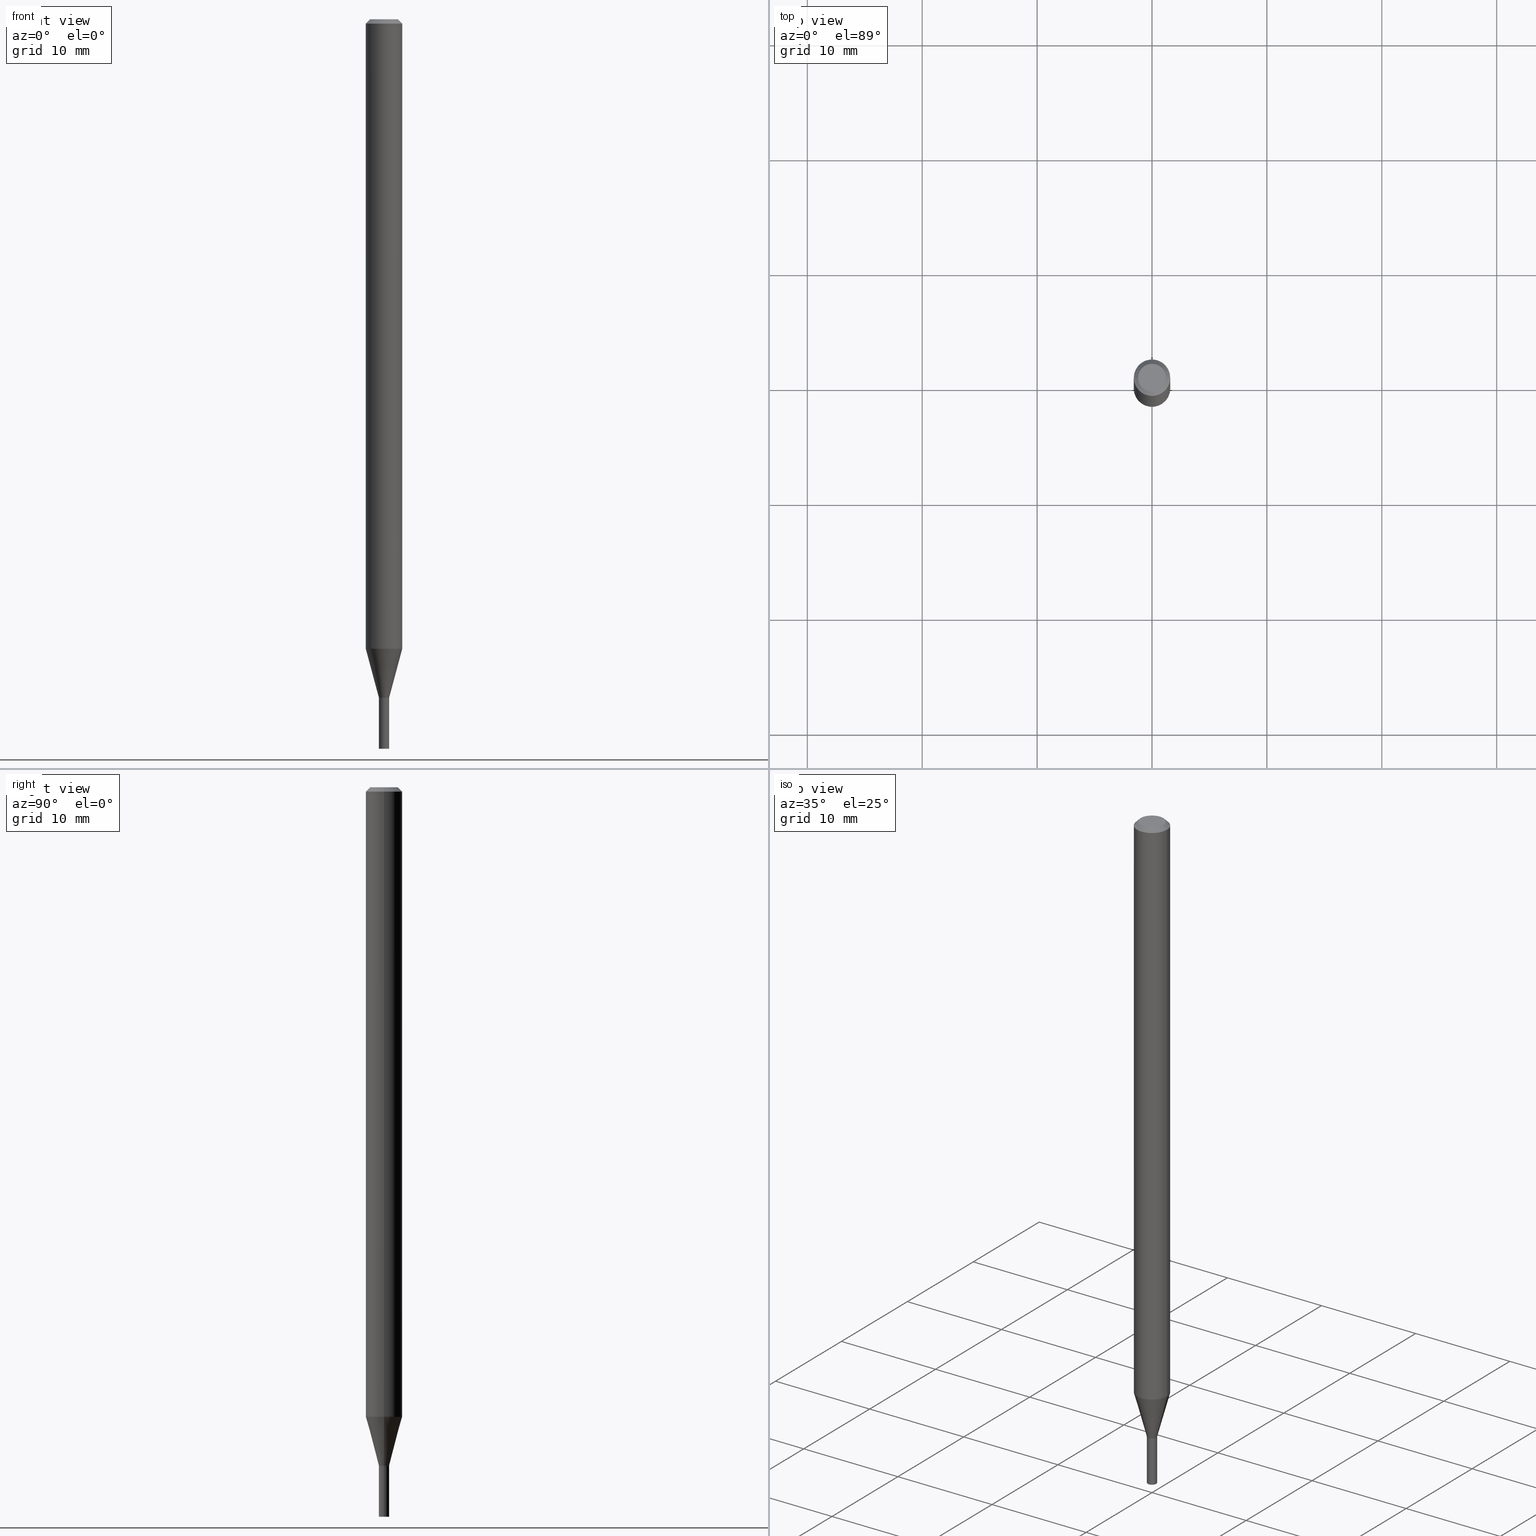
[diagram: canonical four-view strip — front | top / right | iso, engineering-drawing reading convention]
A machine part, canonical four-view strip (front | top / right | iso — engineering-drawing reading convention). The complete STEP part file that produces these views, byte-faithful:
ISO-10303-21;
HEADER;
FILE_DESCRIPTION (( 'STEP AP203' ),
    '1' );
FILE_NAME ('01233.STEP',
    '2024-03-20T00:20:50',
    ( '' ),
    ( '' ),
    'SwSTEP 2.0',
    'SolidWorks 2023',
    '' );
FILE_SCHEMA (( 'CONFIG_CONTROL_DESIGN' ));
ENDSEC;

DATA;
#1 = DIRECTION ( 'NONE',  ( -2.445468806185136597E-29, 3.491481338843145583E-15, 1.000000000000000000 ) ) ;
#2 = CARTESIAN_POINT ( 'NONE',  ( 0.06250000000000000000, -4.364351673553916694E-16, 3.047610484872459871E-30 ) ) ;
#3 = CIRCLE ( 'NONE', #449, 0.01749999999999965125 ) ;
#4 = FACE_OUTER_BOUND ( 'NONE', #57, .T. ) ;
#5 = DIRECTION ( 'NONE',  ( 1.000000000000000000, -6.982962677686262766E-15, 0.000000000000000000 ) ) ;
#6 = PLANE ( 'NONE',  #85 ) ;
#7 = FACE_OUTER_BOUND ( 'NONE', #314, .T. ) ;
#8 = AXIS2_PLACEMENT_3D ( 'NONE', #118, #295, #360 ) ;
#9 = AXIS2_PLACEMENT_3D ( 'NONE', #406, #78, #179 ) ;
#10 = CONICAL_SURFACE ( 'NONE', #352, 0.01700000000000000122, 0.7853981633974718157 ) ;
#11 = DIRECTION ( 'NONE',  ( 1.000000000000000000, -6.982962677686274599E-15, 0.000000000000000000 ) ) ;
#12 = DIRECTION ( 'NONE',  ( -2.445468806185136877E-29, 3.491481338843145188E-15, 1.000000000000000000 ) ) ;
#13 = APPROVAL_DATE_TIME ( #378, #204 ) ;
#14 = CC_DESIGN_PERSON_AND_ORGANIZATION_ASSIGNMENT ( #119, #266, ( #164 ) ) ;
#15 = VECTOR ( 'NONE', #26, 39.37007874015748143 ) ;
#16 = CC_DESIGN_APPROVAL ( #392, ( #164 ) ) ;
#17 = ADVANCED_FACE ( 'NONE', ( #458 ), #344, .T. ) ;
#18 = DIRECTION ( 'NONE',  ( -2.445468806185136597E-29, 3.491481338843145583E-15, 1.000000000000000000 ) ) ;
#19 = PERSON_AND_ORGANIZATION ( #210, #114 ) ;
#20 = EDGE_LOOP ( 'NONE', ( #177, #285, #289, #464 ) ) ;
#21 =( NAMED_UNIT ( * ) SI_UNIT ( $, .STERADIAN. ) SOLID_ANGLE_UNIT ( ) );
#22 = EDGE_CURVE ( 'NONE', #38, #242, #72, .T. ) ;
#23 = CARTESIAN_POINT ( 'NONE',  ( 5.685714974380441691E-29, -8.117694112810313450E-15, -2.324999999999999734 ) ) ;
#24 = ORIENTED_EDGE ( 'NONE', *, *, #389, .T. ) ;
#25 = LENGTH_MEASURE_WITH_UNIT ( LENGTH_MEASURE( 0.02539999999999999897 ), #380 );
#26 = DIRECTION ( 'NONE',  ( -2.445468806185136877E-29, 3.491481338843145188E-15, 1.000000000000000000 ) ) ;
#27 = ORIENTED_EDGE ( 'NONE', *, *, #186, .T. ) ;
#28 = CARTESIAN_POINT ( 'NONE',  ( 5.685714974380443933E-29, -8.117694112810315028E-15, -2.325000000000000622 ) ) ;
#29 = VERTEX_POINT ( 'NONE', #169 ) ;
#30 = ADVANCED_FACE ( 'NONE', ( #358 ), #182, .T. ) ;
#31 = CARTESIAN_POINT ( 'NONE',  ( -0.01750000000000000167, 1.243449787580175444E-16, -8.608136407946085539E-31 ) ) ;
#32 = LOCAL_TIME ( 20, 20, 50.00000000000000000, #50 ) ;
#33 = EDGE_LOOP ( 'NONE', ( #257, #24, #91, #395 ) ) ;
#34 = ORIENTED_EDGE ( 'NONE', *, *, #291, .F. ) ;
#35 = DIRECTION ( 'NONE',  ( 1.000000000000000000, -6.982962677686267499E-15, 5.108144071313017768E-29 ) ) ;
#36 = DIRECTION ( 'NONE',  ( -1.000000000000000000, 6.982962677686266711E-15, 0.000000000000000000 ) ) ;
#37 = EDGE_LOOP ( 'NONE', ( #98, #402 ) ) ;
#38 = VERTEX_POINT ( 'NONE', #311 ) ;
#39 = DIRECTION ( 'NONE',  ( 2.445468806185136597E-29, -3.491481338843145583E-15, -1.000000000000000000 ) ) ;
#40 = AXIS2_PLACEMENT_3D ( 'NONE', #423, #247, #218 ) ;
#41 = CARTESIAN_POINT ( 'NONE',  ( 5.275017351895093327E-29, -7.531326754049456374E-15, -2.157057713659400022 ) ) ;
#42 = AXIS2_PLACEMENT_3D ( 'NONE', #41, #111, #5 ) ;
#43 = PRODUCT_RELATED_PRODUCT_CATEGORY ( 'detail', '', ( #243 ) ) ;
#44 = CARTESIAN_POINT ( 'NONE',  ( 0.000000000000000000, 0.000000000000000000, 0.000000000000000000 ) ) ;
#45 = PLANE ( 'NONE',  #437 ) ;
#46 = DIRECTION ( 'NONE',  ( -2.445468806185136597E-29, 3.491481338843145583E-15, 1.000000000000000000 ) ) ;
#47 = CARTESIAN_POINT ( 'NONE',  ( 0.01750000000000000167, -8.239895959669823433E-15, -2.325000000000000178 ) ) ;
#48 = DIRECTION ( 'NONE',  ( -2.445468806185136597E-29, 3.491481338843145583E-15, 1.000000000000000000 ) ) ;
#49 = CARTESIAN_POINT ( 'NONE',  ( 0.01700000000000000122, -8.236404478330978848E-15, -2.324999999999999734 ) ) ;
#50 = COORDINATED_UNIVERSAL_TIME_OFFSET ( 5, 0, .BEHIND. ) ;
#51 = DATE_TIME_ROLE ( 'classification_date' ) ;
#52 = CIRCLE ( 'NONE', #460, 0.01749999999999964778 ) ;
#53 = LOCAL_TIME ( 20, 20, 50.00000000000000000, #456 ) ;
#54 = DIRECTION ( 'NONE',  ( 1.000000000000000000, -6.982962677686267499E-15, 5.108144071313017768E-29 ) ) ;
#55 = FACE_OUTER_BOUND ( 'NONE', #68, .T. ) ;
#56 = LINE ( 'NONE', #165, #278 ) ;
#57 = EDGE_LOOP ( 'NONE', ( #107, #248, #273, #167 ) ) ;
#58 = EDGE_CURVE ( 'NONE', #276, #252, #350, .T. ) ;
#59 = CARTESIAN_POINT ( 'NONE',  ( 3.668203209277705088E-31, -5.237222008264718399E-17, -0.01499999999999999944 ) ) ;
#60 = ORIENTED_EDGE ( 'NONE', *, *, #262, .T. ) ;
#61 = PERSON_AND_ORGANIZATION ( #210, #114 ) ;
#62 = CC_DESIGN_APPROVAL ( #267, ( #309 ) ) ;
#63 = ORIENTED_EDGE ( 'NONE', *, *, #88, .T. ) ;
#64 = ADVANCED_FACE ( 'NONE', ( #137 ), #82, .T. ) ;
#65 = ORIENTED_EDGE ( 'NONE', *, *, #372, .T. ) ;
#66 = CC_DESIGN_DATE_AND_TIME_ASSIGNMENT ( #376, #51, ( #343 ) ) ;
#67 = AXIS2_PLACEMENT_3D ( 'NONE', #371, #48, #11 ) ;
#68 = EDGE_LOOP ( 'NONE', ( #178, #63, #101, #139 ) ) ;
#69 = CARTESIAN_POINT ( 'NONE',  ( 5.684492239977351131E-29, -8.115948372140892735E-15, -2.324500000000000455 ) ) ;
#70 = CARTESIAN_POINT ( 'NONE',  ( -0.01700000000000000122, -7.994252620556986688E-15, -2.324999999999999734 ) ) ;
#71 = ORIENTED_EDGE ( 'NONE', *, *, #328, .T. ) ;
#72 = LINE ( 'NONE', #100, #15 ) ;
#73 = DIRECTION ( 'NONE',  ( -2.445468806185136597E-29, 3.491481338843145583E-15, 1.000000000000000000 ) ) ;
#74 = ORIENTED_EDGE ( 'NONE', *, *, #367, .F. ) ;
#75 = EDGE_CURVE ( 'NONE', #138, #396, #77, .T. ) ;
#76 = APPLICATION_CONTEXT ( 'configuration controlled 3d designs of mechanical parts and assemblies' ) ;
#77 = CIRCLE ( 'NONE', #92, 0.06250000000000000000 ) ;
#78 = DIRECTION ( 'NONE',  ( -2.445468806185136597E-29, 3.491481338843145583E-15, 1.000000000000000000 ) ) ;
#79 = CARTESIAN_POINT ( 'NONE',  ( -0.06250000000000000000, 3.840629472727444916E-16, -0.01499999999999999944 ) ) ;
#80 = DIRECTION ( 'NONE',  ( 0.2588190451025211281, 1.565188264969622954E-15, 0.9659258262890679791 ) ) ;
#81 = EDGE_CURVE ( 'NONE', #286, #208, #361, .T. ) ;
#82 = CONICAL_SURFACE ( 'NONE', #305, 0.01700000000000000122, 0.7853981633974718157 ) ;
#83 = CALENDAR_DATE ( 2024, 19, 3 ) ;
#84 = AXIS2_PLACEMENT_3D ( 'NONE', #44, #405, #112 ) ;
#85 = AXIS2_PLACEMENT_3D ( 'NONE', #229, #151, #117 ) ;
#86 = DIRECTION ( 'NONE',  ( -2.445468806185136597E-29, 3.491481338843145583E-15, 1.000000000000000000 ) ) ;
#87 = SECURITY_CLASSIFICATION_LEVEL ( 'unclassified' ) ;
#88 = EDGE_CURVE ( 'NONE', #127, #242, #56, .T. ) ;
#89 = DIRECTION ( 'NONE',  ( -2.445468806185136597E-29, 3.491481338843145583E-15, 1.000000000000000000 ) ) ;
#90 = CARTESIAN_POINT ( 'NONE',  ( 5.685714974380442812E-29, -8.117694112810313450E-15, -2.325000000000000178 ) ) ;
#91 = ORIENTED_EDGE ( 'NONE', *, *, #246, .T. ) ;
#92 = AXIS2_PLACEMENT_3D ( 'NONE', #417, #412, #377 ) ;
#93 = FACE_OUTER_BOUND ( 'NONE', #315, .T. ) ;
#94 = DIRECTION ( 'NONE',  ( 0.000000000000000000, 0.000000000000000000, 1.000000000000000000 ) ) ;
#95 = AXIS2_PLACEMENT_3D ( 'NONE', #168, #94, #126 ) ;
#96 = ORIENTED_EDGE ( 'NONE', *, *, #88, .F. ) ;
#97 = ADVANCED_FACE ( 'NONE', ( #348 ), #103, .T. ) ;
#98 = ORIENTED_EDGE ( 'NONE', *, *, #345, .F. ) ;
#99 = CALENDAR_DATE ( 2024, 19, 3 ) ;
#100 = CARTESIAN_POINT ( 'NONE',  ( -0.01749999999999965125, 1.243449787580150545E-16, -8.608136407945913879E-31 ) ) ;
#101 = ORIENTED_EDGE ( 'NONE', *, *, #408, .F. ) ;
#102 = EDGE_LOOP ( 'NONE', ( #216, #244 ) ) ;
#103 = CYLINDRICAL_SURFACE ( 'NONE', #40, 0.06250000000000000000 ) ;
#104 = EDGE_LOOP ( 'NONE', ( #96, #433, #27, #171 ) ) ;
#105 = AXIS2_PLACEMENT_3D ( 'NONE', #183, #330, #237 ) ;
#106 = ADVANCED_FACE ( 'NONE', ( #318 ), #321, .F. ) ;
#107 = ORIENTED_EDGE ( 'NONE', *, *, #439, .F. ) ;
#108 = CARTESIAN_POINT ( 'NONE',  ( 5.685714974380443933E-29, -8.117694112810315028E-15, -2.325000000000000622 ) ) ;
#109 = ADVANCED_BREP_SHAPE_REPRESENTATION ( '01233', ( #120, #274, #95 ), #374 ) ;
#110 = DIRECTION ( 'NONE',  ( -1.000000000000000000, 6.982962677686265922E-15, -4.876176775795935793E-29 ) ) ;
#111 = DIRECTION ( 'NONE',  ( -2.445468806185136597E-29, 3.491481338843145583E-15, 1.000000000000000000 ) ) ;
#112 = DIRECTION ( 'NONE',  ( 1.000000000000000000, -6.982962677686266711E-15, 4.876176775795935793E-29 ) ) ;
#113 = DIRECTION ( 'NONE',  ( -2.445468806185136597E-29, 3.491481338843145583E-15, 1.000000000000000000 ) ) ;
#114 = ORGANIZATION ( 'UNSPECIFIED', 'UNSPECIFIED', '' ) ;
#115 = ADVANCED_FACE ( 'NONE', ( #93 ), #142, .T. ) ;
#116 = LINE ( 'NONE', #49, #435 ) ;
#117 = DIRECTION ( 'NONE',  ( 1.000000000000000000, -6.982962677686265922E-15, 4.876176775795935793E-29 ) ) ;
#118 = CARTESIAN_POINT ( 'NONE',  ( 1.222018468595665098E-16, 0.01749999999999188316, -2.325000000000000178 ) ) ;
#119 = PERSON_AND_ORGANIZATION ( #210, #114 ) ;
#120 = MANIFOLD_SOLID_BREP ( 'Body-Move/Copy2[1]', #426 ) ;
#121 = AXIS2_PLACEMENT_3D ( 'NONE', #90, #239, #385 ) ;
#122 = CIRCLE ( 'NONE', #455, 0.01750000000000000167 ) ;
#123 = AXIS2_PLACEMENT_3D ( 'NONE', #283, #434, #401 ) ;
#124 = CIRCLE ( 'NONE', #214, 0.01700000000000000122 ) ;
#125 = ORIENTED_EDGE ( 'NONE', *, *, #162, .T. ) ;
#126 = DIRECTION ( 'NONE',  ( 1.000000000000000000, 0.000000000000000000, 0.000000000000000000 ) ) ;
#127 = VERTEX_POINT ( 'NONE', #70 ) ;
#128 = APPLICATION_PROTOCOL_DEFINITION ( 'international standard', 'config_control_design', 1994, #76 ) ;
#129 = ADVANCED_FACE ( 'NONE', ( #251 ), #327, .T. ) ;
#130 = ORIENTED_EDGE ( 'NONE', *, *, #75, .F. ) ;
#131 = DIRECTION ( 'NONE',  ( 1.000000000000000000, -6.982962677686265922E-15, 4.876176775795935793E-29 ) ) ;
#132 = CARTESIAN_POINT ( 'NONE',  ( 5.685714974380443933E-29, -8.117694112810315028E-15, -2.325000000000000622 ) ) ;
#133 = APPROVAL_PERSON_ORGANIZATION ( #241, #267, #163 ) ;
#134 = VERTEX_POINT ( 'NONE', #181 ) ;
#135 = ORIENTED_EDGE ( 'NONE', *, *, #379, .T. ) ;
#136 = DIMENSIONAL_EXPONENTS ( 1.000000000000000000, 0.000000000000000000, 0.000000000000000000, 0.000000000000000000, 0.000000000000000000, 0.000000000000000000, 0.000000000000000000 ) ;
#137 = FACE_OUTER_BOUND ( 'NONE', #104, .T. ) ;
#138 = VERTEX_POINT ( 'NONE', #205 ) ;
#139 = ORIENTED_EDGE ( 'NONE', *, *, #186, .F. ) ;
#140 = CARTESIAN_POINT ( 'NONE',  ( -0.06250000000000000000, 4.440892098500626162E-16, -3.074334431409316114E-30 ) ) ;
#141 = DIRECTION ( 'NONE',  ( -2.445468806185136597E-29, 3.491481338843145583E-15, 1.000000000000000000 ) ) ;
#142 = CONICAL_SURFACE ( 'NONE', #337, 0.01749999999999964778, 0.2617993877991498519 ) ;
#143 = ORIENTED_EDGE ( 'NONE', *, *, #313, .T. ) ;
#144 = LOCAL_TIME ( 20, 20, 50.00000000000000000, #264 ) ;
#145 = DIRECTION ( 'NONE',  ( -2.445468806185136877E-29, 3.491481338843145188E-15, 1.000000000000000000 ) ) ;
#146 = DIRECTION ( 'NONE',  ( 0.7071067811865642261, -2.468850131082431399E-15, 0.7071067811865309194 ) ) ;
#147 = EDGE_CURVE ( 'NONE', #134, #38, #52, .T. ) ;
#148 = CARTESIAN_POINT ( 'NONE',  ( 0.01749999999999964778, -8.239895959669821855E-15, -2.325000000000000622 ) ) ;
#149 = CARTESIAN_POINT ( 'NONE',  ( 0.01749999999999965125, -1.222018468595072220E-16, 8.533309357642717380E-31 ) ) ;
#150 = EDGE_CURVE ( 'NONE', #390, #252, #260, .T. ) ;
#151 = DIRECTION ( 'NONE',  ( -2.438088387897960049E-29, 3.491481338843145188E-15, 1.000000000000000000 ) ) ;
#152 = CARTESIAN_POINT ( 'NONE',  ( 5.684492239977351131E-29, -8.115948372140892735E-15, -2.324500000000000455 ) ) ;
#153 = CIRCLE ( 'NONE', #416, 0.01749999999999965125 ) ;
#154 = CONICAL_SURFACE ( 'NONE', #420, 0.06250000000000000000, 0.7853981633974109755 ) ;
#155 = CARTESIAN_POINT ( 'NONE',  ( -2.746572805822384744E-44, 3.921378049496544864E-30, 1.123127311571380021E-15 ) ) ;
#156 = CC_DESIGN_PERSON_AND_ORGANIZATION_ASSIGNMENT ( #307, #310, ( #243 ) ) ;
#157 = VECTOR ( 'NONE', #145, 39.37007874015748143 ) ;
#158 = FACE_OUTER_BOUND ( 'NONE', #353, .T. ) ;
#159 = SHAPE_DEFINITION_REPRESENTATION ( #199, #109 ) ;
#160 = LOCAL_TIME ( 20, 20, 50.00000000000000000, #172 ) ;
#161 = APPROVAL_STATUS ( 'not_yet_approved' ) ;
#162 = EDGE_CURVE ( 'NONE', #29, #354, #387, .T. ) ;
#163 = APPROVAL_ROLE ( '' ) ;
#164 = PRODUCT_DEFINITION_FORMATION_WITH_SPECIFIED_SOURCE ( 'ANY', '', #243, .NOT_KNOWN. ) ;
#165 = CARTESIAN_POINT ( 'NONE',  ( -0.01700000000000000122, -7.996901847731095522E-15, -2.324999999999999734 ) ) ;
#166 = APPLICATION_PROTOCOL_DEFINITION ( 'international standard', 'config_control_design', 1994, #275 ) ;
#167 = ORIENTED_EDGE ( 'NONE', *, *, #195, .F. ) ;
#168 = CARTESIAN_POINT ( 'NONE',  ( 0.000000000000000000, 0.000000000000000000, 0.000000000000000000 ) ) ;
#169 = CARTESIAN_POINT ( 'NONE',  ( 0.06250000000000000000, -4.888073874380388472E-16, -0.01499999999999999944 ) ) ;
#170 = DIRECTION ( 'NONE',  ( -2.438088387897960049E-29, 3.491481338843145188E-15, 1.000000000000000000 ) ) ;
#171 = ORIENTED_EDGE ( 'NONE', *, *, #224, .F. ) ;
#172 = COORDINATED_UNIVERSAL_TIME_OFFSET ( 5, 0, .BEHIND. ) ;
#173 = EDGE_LOOP ( 'NONE', ( #175, #240, #341, #323 ) ) ;
#174 = AXIS2_PLACEMENT_3D ( 'NONE', #326, #1, #391 ) ;
#175 = ORIENTED_EDGE ( 'NONE', *, *, #340, .F. ) ;
#176 = VECTOR ( 'NONE', #80, 39.37007874015748854 ) ;
#177 = ORIENTED_EDGE ( 'NONE', *, *, #372, .F. ) ;
#178 = ORIENTED_EDGE ( 'NONE', *, *, #345, .T. ) ;
#179 = DIRECTION ( 'NONE',  ( 1.000000000000000000, -6.982962677686266711E-15, 0.000000000000000000 ) ) ;
#180 = ADVANCED_FACE ( 'NONE', ( #158 ), #363, .T. ) ;
#181 = CARTESIAN_POINT ( 'NONE',  ( 0.01749999999999964778, -8.239895959669821855E-15, -2.325000000000000622 ) ) ;
#182 = CYLINDRICAL_SURFACE ( 'NONE', #174, 0.01750000000000000167 ) ;
#183 = CARTESIAN_POINT ( 'NONE',  ( 6.113672015462842613E-29, -8.728703347107864943E-15, -2.500000000000000000 ) ) ;
#184 = DESIGN_CONTEXT ( 'detailed design', #76, 'design' ) ;
#185 = DIRECTION ( 'NONE',  ( -1.000000000000000000, 6.982962677686266711E-15, 0.000000000000000000 ) ) ;
#186 = EDGE_CURVE ( 'NONE', #322, #346, #116, .T. ) ;
#187 = DIRECTION ( 'NONE',  ( 1.000000000000000000, -6.982962677686274599E-15, 0.000000000000000000 ) ) ;
#188 = DIRECTION ( 'NONE',  ( 1.000000000000000000, -6.982962677686248567E-15, 0.000000000000000000 ) ) ;
#189 = CARTESIAN_POINT ( 'NONE',  ( 5.685714974380441691E-29, -8.117694112810313450E-15, -2.324999999999999734 ) ) ;
#190 = DIRECTION ( 'NONE',  ( 1.000000000000000000, -6.982962677686266711E-15, 0.000000000000000000 ) ) ;
#191 = PERSON_AND_ORGANIZATION ( #210, #114 ) ;
#192 = CIRCLE ( 'NONE', #42, 0.06250000000000000000 ) ;
#193 = ADVANCED_FACE ( 'NONE', ( #7 ), #154, .T. ) ;
#194 = APPROVAL_STATUS ( 'not_yet_approved' ) ;
#195 = EDGE_CURVE ( 'NONE', #134, #346, #331, .T. ) ;
#196 = DIRECTION ( 'NONE',  ( 1.000000000000000000, -6.982962677686274599E-15, 0.000000000000000000 ) ) ;
#197 = AXIS2_PLACEMENT_3D ( 'NONE', #399, #356, #36 ) ;
#198 = DIRECTION ( 'NONE',  ( -2.445468806185136597E-29, 3.491481338843145583E-15, 1.000000000000000000 ) ) ;
#199 = PRODUCT_DEFINITION_SHAPE ( 'NONE', 'NONE',  #309 ) ;
#200 =( NAMED_UNIT ( * ) PLANE_ANGLE_UNIT ( ) SI_UNIT ( $, .RADIAN. ) );
#201 = CIRCLE ( 'NONE', #270, 0.04749999999999999362 ) ;
#202 = DIRECTION ( 'NONE',  ( -2.445468806185136597E-29, 3.491481338843145583E-15, 1.000000000000000000 ) ) ;
#203 = ORIENTED_EDGE ( 'NONE', *, *, #195, .T. ) ;
#204 = APPROVAL ( #194, 'UNSPECIFIED' ) ;
#205 = CARTESIAN_POINT ( 'NONE',  ( 0.06250000000000001388, -7.967761921404848044E-15, -2.157057713659400022 ) ) ;
#206 = EDGE_LOOP ( 'NONE', ( #213, #319 ) ) ;
#207 = CALENDAR_DATE ( 2024, 19, 3 ) ;
#208 = VERTEX_POINT ( 'NONE', #227 ) ;
#209 = ORIENTED_EDGE ( 'NONE', *, *, #246, .F. ) ;
#210 = PERSON ( 'UNSPECIFIED', 'UNSPECIFIED', 'UNSPECIFIED', ('UNSPECIFIED'), ('UNSPECIFIED'), ('UNSPECIFIED') ) ;
#211 = AXIS2_PLACEMENT_3D ( 'NONE', #271, #86, #54 ) ;
#212 = AXIS2_PLACEMENT_3D ( 'NONE', #413, #428, #253 ) ;
#213 = ORIENTED_EDGE ( 'NONE', *, *, #150, .T. ) ;
#214 = AXIS2_PLACEMENT_3D ( 'NONE', #189, #287, #187 ) ;
#215 = ORIENTED_EDGE ( 'NONE', *, *, #162, .F. ) ;
#216 = ORIENTED_EDGE ( 'NONE', *, *, #262, .F. ) ;
#217 = DIRECTION ( 'NONE',  ( 1.000000000000000000, -6.982962677686277755E-15, 0.000000000000000000 ) ) ;
#218 = DIRECTION ( 'NONE',  ( 1.000000000000000000, -6.982962677686266711E-15, 4.876176775795935793E-29 ) ) ;
#219 = ORIENTED_EDGE ( 'NONE', *, *, #313, .F. ) ;
#220 = ORIENTED_EDGE ( 'NONE', *, *, #415, .F. ) ;
#221 = CC_DESIGN_PERSON_AND_ORGANIZATION_ASSIGNMENT ( #191, #231, ( #343 ) ) ;
#222 = DIRECTION ( 'NONE',  ( 1.000000000000000000, -6.982962677686277755E-15, 0.000000000000000000 ) ) ;
#223 = LINE ( 'NONE', #79, #225 ) ;
#224 = EDGE_CURVE ( 'NONE', #242, #346, #153, .T. ) ;
#225 = VECTOR ( 'NONE', #228, 39.37007874015748143 ) ;
#226 = LINE ( 'NONE', #2, #157 ) ;
#227 = CARTESIAN_POINT ( 'NONE',  ( -0.04749999999999999362, 3.578768372314230227E-16, 1.123127311571377654E-15 ) ) ;
#228 = DIRECTION ( 'NONE',  ( -0.7071067811865211494, 2.468850131081980565E-15, -0.7071067811865738850 ) ) ;
#229 = CARTESIAN_POINT ( 'NONE',  ( 6.194428952736783458E-29, -8.613054816532157721E-15, -2.500000000000000000 ) ) ;
#230 = APPROVAL_PERSON_ORGANIZATION ( #19, #392, #303 ) ;
#231 = PERSON_AND_ORGANIZATION_ROLE ( 'classification_officer' ) ;
#232 = DIRECTION ( 'NONE',  ( -0.7071067811865642261, 7.493145998870414114E-15, 0.7071067811865309194 ) ) ;
#233 = ADVANCED_FACE ( 'NONE', ( #438 ), #334, .F. ) ;
#234 = CARTESIAN_POINT ( 'NONE',  ( 5.685714974380441691E-29, -8.117694112810313450E-15, -2.324999999999999734 ) ) ;
#235 = APPROVAL_DATE_TIME ( #414, #392 ) ;
#236 = VECTOR ( 'NONE', #364, 39.37007874015748854 ) ;
#237 = DIRECTION ( 'NONE',  ( 1.000000000000000000, -6.982962677686303787E-15, 0.000000000000000000 ) ) ;
#238 = EDGE_CURVE ( 'NONE', #127, #322, #269, .T. ) ;
#239 = DIRECTION ( 'NONE',  ( -2.445468806185136597E-29, 3.491481338843145583E-15, 1.000000000000000000 ) ) ;
#240 = ORIENTED_EDGE ( 'NONE', *, *, #439, .T. ) ;
#241 = PERSON_AND_ORGANIZATION ( #210, #114 ) ;
#242 = VERTEX_POINT ( 'NONE', #299 ) ;
#243 = PRODUCT ( '01233', '01233', '', ( #419 ) ) ;
#244 = ORIENTED_EDGE ( 'NONE', *, *, #389, .F. ) ;
#245 =( CONVERSION_BASED_UNIT ( 'INCH', #25 ) LENGTH_UNIT ( ) NAMED_UNIT ( #136 ) );
#246 = EDGE_CURVE ( 'NONE', #425, #390, #450, .T. ) ;
#247 = DIRECTION ( 'NONE',  ( -2.445468806185136597E-29, 3.491481338843145583E-15, 1.000000000000000000 ) ) ;
#248 = ORIENTED_EDGE ( 'NONE', *, *, #22, .T. ) ;
#249 = ORIENTED_EDGE ( 'NONE', *, *, #150, .F. ) ;
#250 = CIRCLE ( 'NONE', #306, 0.01749999999999964778 ) ;
#251 = FACE_OUTER_BOUND ( 'NONE', #20, .T. ) ;
#252 = VERTEX_POINT ( 'NONE', #256 ) ;
#253 = DIRECTION ( 'NONE',  ( 1.000000000000000000, -6.982962677686265922E-15, 4.876176775795935793E-29 ) ) ;
#254 = ORIENTED_EDGE ( 'NONE', *, *, #81, .T. ) ;
#255 = CARTESIAN_POINT ( 'NONE',  ( 0.01750000000000000167, -8.850905193967374926E-15, -2.500000000000000000 ) ) ;
#256 = CARTESIAN_POINT ( 'NONE',  ( -0.01750000000000000167, -8.298853751201071948E-15, -2.325000000000000178 ) ) ;
#257 = ORIENTED_EDGE ( 'NONE', *, *, #58, .F. ) ;
#258 = DIRECTION ( 'NONE',  ( 0.7071067811865211494, -7.319954787623167693E-15, -0.7071067811865738850 ) ) ;
#259 = CARTESIAN_POINT ( 'NONE',  ( 0.06250000000000000000, -4.811533449433679005E-16, -0.01499999999999999944 ) ) ;
#260 = CIRCLE ( 'NONE', #121, 0.01750000000000000167 ) ;
#261 = CARTESIAN_POINT ( 'NONE',  ( 0.01750000000000000167, -1.222018468595096625E-16, 8.533309357642889039E-31 ) ) ;
#262 = EDGE_CURVE ( 'NONE', #425, #276, #388, .T. ) ;
#263 = FACE_OUTER_BOUND ( 'NONE', #282, .T. ) ;
#264 = COORDINATED_UNIVERSAL_TIME_OFFSET ( 5, 0, .BEHIND. ) ;
#265 = CONICAL_SURFACE ( 'NONE', #362, 0.01749999999999964778, 0.2617993877991498519 ) ;
#266 = PERSON_AND_ORGANIZATION_ROLE ( 'creator' ) ;
#267 = APPROVAL ( #277, 'UNSPECIFIED' ) ;
#268 = COORDINATED_UNIVERSAL_TIME_OFFSET ( 5, 0, .BEHIND. ) ;
#269 = CIRCLE ( 'NONE', #67, 0.01700000000000000122 ) ;
#270 = AXIS2_PLACEMENT_3D ( 'NONE', #155, #73, #35 ) ;
#271 = CARTESIAN_POINT ( 'NONE',  ( -2.746572805822384744E-44, 3.921378049496544864E-30, 1.123127311571380021E-15 ) ) ;
#272 = ADVANCED_FACE ( 'NONE', ( #55 ), #10, .T. ) ;
#273 = ORIENTED_EDGE ( 'NONE', *, *, #224, .T. ) ;
#274 = MANIFOLD_SOLID_BREP ( 'Body-Move/Copy2[2]', #373 ) ;
#275 = APPLICATION_CONTEXT ( 'configuration controlled 3d designs of mechanical parts and assemblies' ) ;
#276 = VERTEX_POINT ( 'NONE', #452 ) ;
#277 = APPROVAL_STATUS ( 'not_yet_approved' ) ;
#278 = VECTOR ( 'NONE', #232, 39.37007874015748143 ) ;
#279 = VECTOR ( 'NONE', #436, 39.37007874015748143 ) ;
#280 = ORIENTED_EDGE ( 'NONE', *, *, #147, .F. ) ;
#281 = ADVANCED_FACE ( 'NONE', ( #263 ), #410, .F. ) ;
#282 = EDGE_LOOP ( 'NONE', ( #459, #280, #203, #349 ) ) ;
#283 = CARTESIAN_POINT ( 'NONE',  ( 0.000000000000000000, 0.000000000000000000, 0.000000000000000000 ) ) ;
#284 = CC_DESIGN_DATE_AND_TIME_ASSIGNMENT ( #393, #339, ( #309 ) ) ;
#285 = ORIENTED_EDGE ( 'NONE', *, *, #328, .F. ) ;
#286 = VERTEX_POINT ( 'NONE', #440 ) ;
#287 = DIRECTION ( 'NONE',  ( -2.445468806185136597E-29, 3.491481338843145583E-15, 1.000000000000000000 ) ) ;
#288 = AXIS2_PLACEMENT_3D ( 'NONE', #465, #424, #304 ) ;
#289 = ORIENTED_EDGE ( 'NONE', *, *, #291, .T. ) ;
#290 = CARTESIAN_POINT ( 'NONE',  ( 0.01700000000000000122, -8.236404478330978848E-15, -2.324999999999999734 ) ) ;
#291 = EDGE_CURVE ( 'NONE', #208, #354, #223, .T. ) ;
#292 = LINE ( 'NONE', #148, #176 ) ;
#293 = DIRECTION ( 'NONE',  ( -2.445468806185136597E-29, 3.491481338843145583E-15, 1.000000000000000000 ) ) ;
#294 = CARTESIAN_POINT ( 'NONE',  ( 6.113672015462842613E-29, -8.728703347107864943E-15, -2.500000000000000000 ) ) ;
#295 = DIRECTION ( 'NONE',  ( 2.438088387897960049E-29, -3.491481338843145188E-15, -1.000000000000000000 ) ) ;
#296 = CIRCLE ( 'NONE', #411, 0.01750000000000000167 ) ;
#297 = LINE ( 'NONE', #403, #236 ) ;
#298 = EDGE_CURVE ( 'NONE', #252, #390, #296, .T. ) ;
#299 = CARTESIAN_POINT ( 'NONE',  ( -0.01749999999999965125, -7.991603393382877853E-15, -2.324500000000000455 ) ) ;
#300 = CC_DESIGN_PERSON_AND_ORGANIZATION_ASSIGNMENT ( #418, #375, ( #164 ) ) ;
#301 = CARTESIAN_POINT ( 'NONE',  ( 5.685714974380441691E-29, -8.117694112810313450E-15, -2.324999999999999734 ) ) ;
#302 = EDGE_CURVE ( 'NONE', #354, #29, #398, .T. ) ;
#303 = APPROVAL_ROLE ( '' ) ;
#304 = DIRECTION ( 'NONE',  ( 1.000000000000000000, -6.982962677686265922E-15, 4.876176775795935793E-29 ) ) ;
#305 = AXIS2_PLACEMENT_3D ( 'NONE', #234, #18, #381 ) ;
#306 = AXIS2_PLACEMENT_3D ( 'NONE', #108, #293, #368 ) ;
#307 = PERSON_AND_ORGANIZATION ( #210, #114 ) ;
#308 = UNCERTAINTY_MEASURE_WITH_UNIT (LENGTH_MEASURE( 1.000000000000000082E-05 ), #245, 'distance_accuracy_value', 'NONE');
#309 = PRODUCT_DEFINITION ( 'UNKNOWN', '', #164, #184 ) ;
#310 = PERSON_AND_ORGANIZATION_ROLE ( 'design_owner' ) ;
#311 = CARTESIAN_POINT ( 'NONE',  ( -0.01749999999999964778, -7.540293339125846952E-15, -2.325000000000000622 ) ) ;
#312 = ORIENTED_EDGE ( 'NONE', *, *, #75, .T. ) ;
#313 = EDGE_CURVE ( 'NONE', #138, #29, #226, .T. ) ;
#314 = EDGE_LOOP ( 'NONE', ( #357, #65, #125, #34 ) ) ;
#315 = EDGE_LOOP ( 'NONE', ( #400, #432, #130, #74 ) ) ;
#316 = AXIS2_PLACEMENT_3D ( 'NONE', #59, #202, #190 ) ;
#317 = VECTOR ( 'NONE', #336, 39.37007874015748143 ) ;
#318 = FACE_OUTER_BOUND ( 'NONE', #37, .T. ) ;
#319 = ORIENTED_EDGE ( 'NONE', *, *, #298, .T. ) ;
#320 = EDGE_LOOP ( 'NONE', ( #220, #135, #143, #431 ) ) ;
#321 = PLANE ( 'NONE',  #342 ) ;
#322 = VERTEX_POINT ( 'NONE', #290 ) ;
#323 = ORIENTED_EDGE ( 'NONE', *, *, #379, .F. ) ;
#324 = LINE ( 'NONE', #259, #338 ) ;
#325 = CARTESIAN_POINT ( 'NONE',  ( 5.685714974380443933E-29, -8.117694112810315028E-15, -2.325000000000000622 ) ) ;
#326 = CARTESIAN_POINT ( 'NONE',  ( 0.000000000000000000, 0.000000000000000000, 0.000000000000000000 ) ) ;
#327 = CONICAL_SURFACE ( 'NONE', #197, 0.06250000000000000000, 0.7853981633974109755 ) ;
#328 = EDGE_CURVE ( 'NONE', #208, #286, #201, .T. ) ;
#329 = APPROVAL_PERSON_ORGANIZATION ( #335, #204, #451 ) ;
#330 = DIRECTION ( 'NONE',  ( -2.445468806185136597E-29, 3.491481338843145583E-15, 1.000000000000000000 ) ) ;
#331 = LINE ( 'NONE', #149, #351 ) ;
#332 = FACE_OUTER_BOUND ( 'NONE', #102, .T. ) ;
#333 = DIRECTION ( 'NONE',  ( 2.438088387897960049E-29, -3.491481338843145188E-15, -1.000000000000000000 ) ) ;
#334 = PLANE ( 'NONE',  #8 ) ;
#335 = PERSON_AND_ORGANIZATION ( #210, #114 ) ;
#336 = DIRECTION ( 'NONE',  ( -2.445468806185136877E-29, 3.491481338843145188E-15, 1.000000000000000000 ) ) ;
#337 = AXIS2_PLACEMENT_3D ( 'NONE', #28, #394, #462 ) ;
#338 = VECTOR ( 'NONE', #258, 39.37007874015748143 ) ;
#339 = DATE_TIME_ROLE ( 'creation_date' ) ;
#340 = EDGE_CURVE ( 'NONE', #38, #396, #297, .T. ) ;
#341 = ORIENTED_EDGE ( 'NONE', *, *, #367, .T. ) ;
#342 = AXIS2_PLACEMENT_3D ( 'NONE', #23, #170, #131 ) ;
#343 = SECURITY_CLASSIFICATION ( '', '', #87 ) ;
#344 = CYLINDRICAL_SURFACE ( 'NONE', #123, 0.01750000000000000167 ) ;
#345 = EDGE_CURVE ( 'NONE', #322, #127, #124, .T. ) ;
#346 = VERTEX_POINT ( 'NONE', #407 ) ;
#347 = DATE_AND_TIME ( #207, #53 ) ;
#348 = FACE_OUTER_BOUND ( 'NONE', #320, .T. ) ;
#349 = ORIENTED_EDGE ( 'NONE', *, *, #408, .T. ) ;
#350 = LINE ( 'NONE', #31, #448 ) ;
#351 = VECTOR ( 'NONE', #12, 39.37007874015748143 ) ;
#352 = AXIS2_PLACEMENT_3D ( 'NONE', #301, #198, #196 ) ;
#353 = EDGE_LOOP ( 'NONE', ( #312, #441, #215, #219 ) ) ;
#354 = VERTEX_POINT ( 'NONE', #446 ) ;
#355 = LINE ( 'NONE', #140, #279 ) ;
#356 = DIRECTION ( 'NONE',  ( 2.445468806185136597E-29, -3.491481338843145583E-15, -1.000000000000000000 ) ) ;
#357 = ORIENTED_EDGE ( 'NONE', *, *, #81, .F. ) ;
#358 = FACE_OUTER_BOUND ( 'NONE', #463, .T. ) ;
#359 = ADVANCED_FACE ( 'NONE', ( #442 ), #45, .F. ) ;
#360 = DIRECTION ( 'NONE',  ( -1.000000000000000000, 6.982962677686265922E-15, -4.876176775795935793E-29 ) ) ;
#361 = CIRCLE ( 'NONE', #211, 0.04749999999999999362 ) ;
#362 = AXIS2_PLACEMENT_3D ( 'NONE', #132, #89, #383 ) ;
#363 = CYLINDRICAL_SURFACE ( 'NONE', #84, 0.06250000000000000000 ) ;
#364 = DIRECTION ( 'NONE',  ( -0.2588190451025211281, 5.211531920934547886E-15, 0.9659258262890679791 ) ) ;
#365 = DIRECTION ( 'NONE',  ( -2.445468806185136597E-29, 3.491481338843145583E-15, 1.000000000000000000 ) ) ;
#366 = CARTESIAN_POINT ( 'NONE',  ( 5.685714974380442812E-29, -8.117694112810313450E-15, -2.325000000000000178 ) ) ;
#367 = EDGE_CURVE ( 'NONE', #134, #138, #292, .T. ) ;
#368 = DIRECTION ( 'NONE',  ( 1.000000000000000000, -6.982962677686278543E-15, 0.000000000000000000 ) ) ;
#369 = DIRECTION ( 'NONE',  ( 1.000000000000000000, -6.982962677686303787E-15, 0.000000000000000000 ) ) ;
#370 = CALENDAR_DATE ( 2024, 19, 3 ) ;
#371 = CARTESIAN_POINT ( 'NONE',  ( 5.685714974380441691E-29, -8.117694112810313450E-15, -2.324999999999999734 ) ) ;
#372 = EDGE_CURVE ( 'NONE', #286, #29, #324, .T. ) ;
#373 = CLOSED_SHELL ( 'NONE', ( #447, #272, #193, #180, #115, #457, #97, #129, #359, #106, #64, #281 ) ) ;
#374 =( GEOMETRIC_REPRESENTATION_CONTEXT ( 3 ) GLOBAL_UNCERTAINTY_ASSIGNED_CONTEXT ( ( #308 ) ) GLOBAL_UNIT_ASSIGNED_CONTEXT ( ( #245, #200, #21 ) ) REPRESENTATION_CONTEXT ( 'NONE', 'WORKASPACE' ) );
#375 = PERSON_AND_ORGANIZATION_ROLE ( 'design_supplier' ) ;
#376 = DATE_AND_TIME ( #83, #144 ) ;
#377 = DIRECTION ( 'NONE',  ( 1.000000000000000000, -6.982962677686262766E-15, 0.000000000000000000 ) ) ;
#378 = DATE_AND_TIME ( #409, #32 ) ;
#379 = EDGE_CURVE ( 'NONE', #396, #138, #192, .T. ) ;
#380 =( LENGTH_UNIT ( ) NAMED_UNIT ( * ) SI_UNIT ( $, .METRE. ) );
#381 = DIRECTION ( 'NONE',  ( 1.000000000000000000, -6.982962677686274599E-15, 0.000000000000000000 ) ) ;
#382 = EDGE_LOOP ( 'NONE', ( #71, #254 ) ) ;
#383 = DIRECTION ( 'NONE',  ( 1.000000000000000000, -6.982962677686278543E-15, 0.000000000000000000 ) ) ;
#384 = ADVANCED_FACE ( 'NONE', ( #332 ), #6, .F. ) ;
#385 = DIRECTION ( 'NONE',  ( 1.000000000000000000, -6.982962677686248567E-15, 0.000000000000000000 ) ) ;
#386 = APPROVAL_DATE_TIME ( #347, #267 ) ;
#387 = CIRCLE ( 'NONE', #316, 0.06250000000000000000 ) ;
#388 = CIRCLE ( 'NONE', #105, 0.01750000000000000167 ) ;
#389 = EDGE_CURVE ( 'NONE', #276, #425, #122, .T. ) ;
#390 = VERTEX_POINT ( 'NONE', #47 ) ;
#391 = DIRECTION ( 'NONE',  ( 1.000000000000000000, -6.982962677686265922E-15, 4.876176775795936353E-29 ) ) ;
#392 = APPROVAL ( #161, 'UNSPECIFIED' ) ;
#393 = DATE_AND_TIME ( #99, #160 ) ;
#394 = DIRECTION ( 'NONE',  ( -2.445468806185136597E-29, 3.491481338843145583E-15, 1.000000000000000000 ) ) ;
#395 = ORIENTED_EDGE ( 'NONE', *, *, #298, .F. ) ;
#396 = VERTEX_POINT ( 'NONE', #397 ) ;
#397 = CARTESIAN_POINT ( 'NONE',  ( -0.06250000000000001388, -7.087237544199393758E-15, -2.157057713659400022 ) ) ;
#398 = CIRCLE ( 'NONE', #9, 0.06250000000000000000 ) ;
#399 = CARTESIAN_POINT ( 'NONE',  ( 3.668203209277705088E-31, -5.237222008264718399E-17, -0.01499999999999999944 ) ) ;
#400 = ORIENTED_EDGE ( 'NONE', *, *, #147, .T. ) ;
#401 = DIRECTION ( 'NONE',  ( 1.000000000000000000, -6.982962677686265922E-15, 4.876176775795936353E-29 ) ) ;
#402 = ORIENTED_EDGE ( 'NONE', *, *, #238, .F. ) ;
#403 = CARTESIAN_POINT ( 'NONE',  ( -0.01749999999999964778, -7.993349134052300146E-15, -2.325000000000000622 ) ) ;
#404 = CC_DESIGN_APPROVAL ( #204, ( #343 ) ) ;
#405 = DIRECTION ( 'NONE',  ( -2.445468806185136597E-29, 3.491481338843145583E-15, 1.000000000000000000 ) ) ;
#406 = CARTESIAN_POINT ( 'NONE',  ( 3.668203209277705088E-31, -5.237222008264718399E-17, -0.01499999999999999944 ) ) ;
#407 = CARTESIAN_POINT ( 'NONE',  ( 0.01749999999999965125, -8.238150219000399563E-15, -2.324500000000000455 ) ) ;
#408 = EDGE_CURVE ( 'NONE', #346, #242, #3, .T. ) ;
#409 = CALENDAR_DATE ( 2024, 19, 3 ) ;
#410 = CYLINDRICAL_SURFACE ( 'NONE', #212, 0.01749999999999965125 ) ;
#411 = AXIS2_PLACEMENT_3D ( 'NONE', #366, #46, #188 ) ;
#412 = DIRECTION ( 'NONE',  ( -2.445468806185136597E-29, 3.491481338843145583E-15, 1.000000000000000000 ) ) ;
#413 = CARTESIAN_POINT ( 'NONE',  ( 0.000000000000000000, 0.000000000000000000, 0.000000000000000000 ) ) ;
#414 = DATE_AND_TIME ( #370, #427 ) ;
#415 = EDGE_CURVE ( 'NONE', #396, #354, #355, .T. ) ;
#416 = AXIS2_PLACEMENT_3D ( 'NONE', #152, #365, #222 ) ;
#417 = CARTESIAN_POINT ( 'NONE',  ( 5.275017351895093327E-29, -7.531326754049456374E-15, -2.157057713659400022 ) ) ;
#418 = PERSON_AND_ORGANIZATION ( #210, #114 ) ;
#419 = MECHANICAL_CONTEXT ( 'NONE', #275, 'mechanical' ) ;
#420 = AXIS2_PLACEMENT_3D ( 'NONE', #443, #39, #185 ) ;
#421 = FACE_OUTER_BOUND ( 'NONE', #173, .T. ) ;
#422 = DIRECTION ( 'NONE',  ( 1.000000000000000000, -6.982962677686278543E-15, 0.000000000000000000 ) ) ;
#423 = CARTESIAN_POINT ( 'NONE',  ( 0.000000000000000000, 0.000000000000000000, 0.000000000000000000 ) ) ;
#424 = DIRECTION ( 'NONE',  ( -2.445468806185136597E-29, 3.491481338843145583E-15, 1.000000000000000000 ) ) ;
#425 = VERTEX_POINT ( 'NONE', #255 ) ;
#426 = CLOSED_SHELL ( 'NONE', ( #30, #384, #17, #233 ) ) ;
#427 = LOCAL_TIME ( 20, 20, 50.00000000000000000, #268 ) ;
#428 = DIRECTION ( 'NONE',  ( -2.445468806185136597E-29, 3.491481338843145583E-15, 1.000000000000000000 ) ) ;
#429 = ORIENTED_EDGE ( 'NONE', *, *, #58, .T. ) ;
#430 = PERSON_AND_ORGANIZATION_ROLE ( 'creator' ) ;
#431 = ORIENTED_EDGE ( 'NONE', *, *, #302, .F. ) ;
#432 = ORIENTED_EDGE ( 'NONE', *, *, #340, .T. ) ;
#433 = ORIENTED_EDGE ( 'NONE', *, *, #238, .T. ) ;
#434 = DIRECTION ( 'NONE',  ( -2.445468806185136597E-29, 3.491481338843145583E-15, 1.000000000000000000 ) ) ;
#435 = VECTOR ( 'NONE', #146, 39.37007874015748143 ) ;
#436 = DIRECTION ( 'NONE',  ( -2.445468806185136877E-29, 3.491481338843145188E-15, 1.000000000000000000 ) ) ;
#437 = AXIS2_PLACEMENT_3D ( 'NONE', #445, #333, #110 ) ;
#438 = FACE_OUTER_BOUND ( 'NONE', #206, .T. ) ;
#439 = EDGE_CURVE ( 'NONE', #38, #134, #250, .T. ) ;
#440 = CARTESIAN_POINT ( 'NONE',  ( 0.04749999999999999362, -4.035134999187558409E-16, 1.123127311571382584E-15 ) ) ;
#441 = ORIENTED_EDGE ( 'NONE', *, *, #415, .T. ) ;
#442 = FACE_OUTER_BOUND ( 'NONE', #382, .T. ) ;
#443 = CARTESIAN_POINT ( 'NONE',  ( 3.668203209277705088E-31, -5.237222008264718399E-17, -0.01499999999999999944 ) ) ;
#444 = CYLINDRICAL_SURFACE ( 'NONE', #288, 0.01749999999999965125 ) ;
#445 = CARTESIAN_POINT ( 'NONE',  ( 3.316907271900976096E-16, 0.04749999999999999362, 3.957182921906405645E-16 ) ) ;
#446 = CARTESIAN_POINT ( 'NONE',  ( -0.06250000000000000000, -3.347760277215989702E-15, -0.01499999999999999944 ) ) ;
#447 = ADVANCED_FACE ( 'NONE', ( #4 ), #444, .F. ) ;
#448 = VECTOR ( 'NONE', #461, 39.37007874015748143 ) ;
#449 = AXIS2_PLACEMENT_3D ( 'NONE', #69, #466, #217 ) ;
#450 = LINE ( 'NONE', #261, #317 ) ;
#451 = APPROVAL_ROLE ( '' ) ;
#452 = CARTESIAN_POINT ( 'NONE',  ( -0.01750000000000000167, -8.298853751201071948E-15, -2.500000000000000000 ) ) ;
#453 = CC_DESIGN_SECURITY_CLASSIFICATION ( #343, ( #164 ) ) ;
#454 = CC_DESIGN_PERSON_AND_ORGANIZATION_ASSIGNMENT ( #61, #430, ( #309 ) ) ;
#455 = AXIS2_PLACEMENT_3D ( 'NONE', #294, #113, #369 ) ;
#456 = COORDINATED_UNIVERSAL_TIME_OFFSET ( 5, 0, .BEHIND. ) ;
#457 = ADVANCED_FACE ( 'NONE', ( #421 ), #265, .T. ) ;
#458 = FACE_OUTER_BOUND ( 'NONE', #33, .T. ) ;
#459 = ORIENTED_EDGE ( 'NONE', *, *, #22, .F. ) ;
#460 = AXIS2_PLACEMENT_3D ( 'NONE', #325, #141, #422 ) ;
#461 = DIRECTION ( 'NONE',  ( -2.445468806185136877E-29, 3.491481338843145188E-15, 1.000000000000000000 ) ) ;
#462 = DIRECTION ( 'NONE',  ( 1.000000000000000000, -6.982962677686278543E-15, 0.000000000000000000 ) ) ;
#463 = EDGE_LOOP ( 'NONE', ( #60, #429, #249, #209 ) ) ;
#464 = ORIENTED_EDGE ( 'NONE', *, *, #302, .T. ) ;
#465 = CARTESIAN_POINT ( 'NONE',  ( 0.000000000000000000, 0.000000000000000000, 0.000000000000000000 ) ) ;
#466 = DIRECTION ( 'NONE',  ( -2.445468806185136597E-29, 3.491481338843145583E-15, 1.000000000000000000 ) ) ;
ENDSEC;
END-ISO-10303-21;
